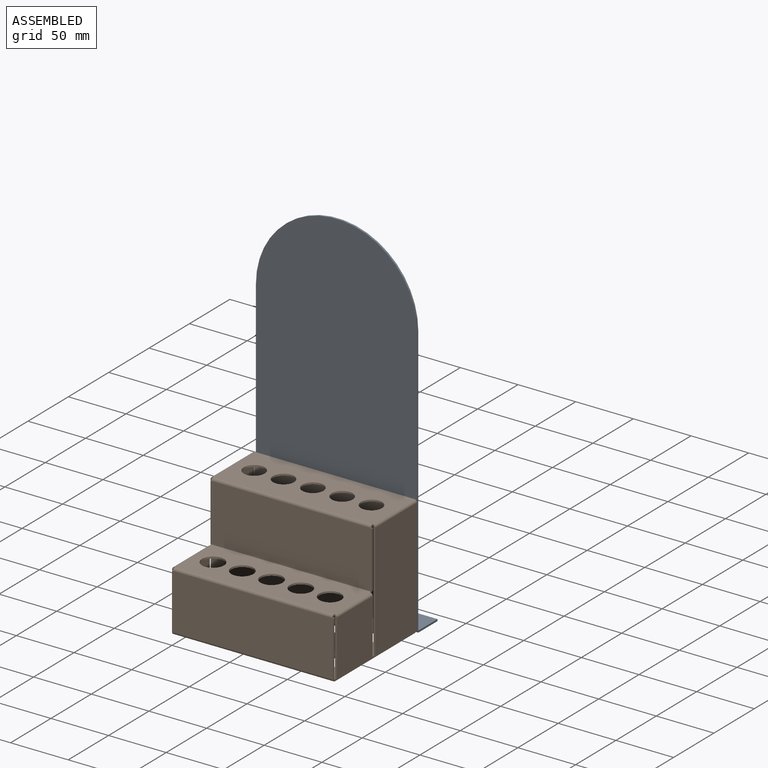
[diagram: assembled view]
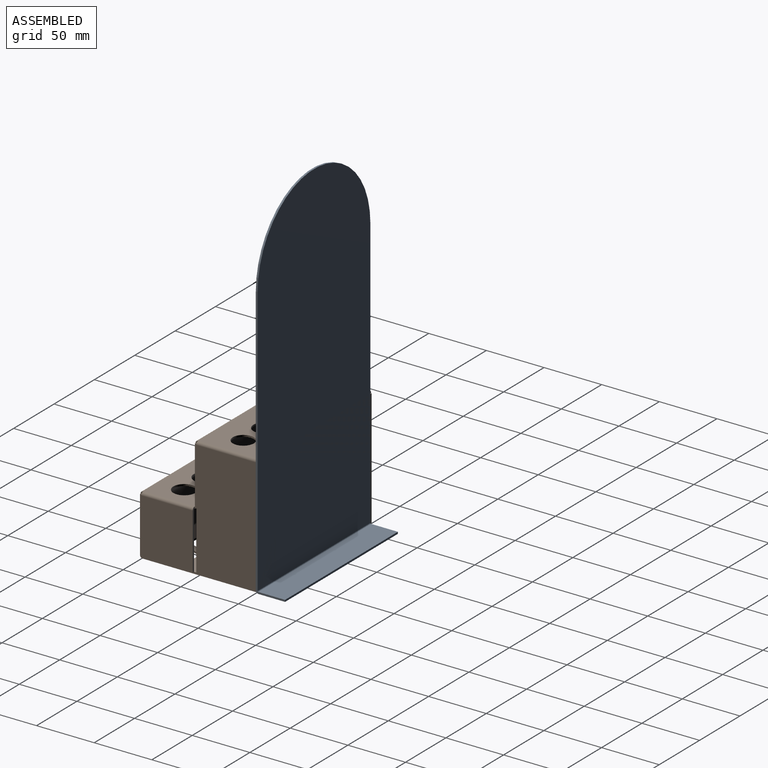
[diagram: assembled view, second angle]
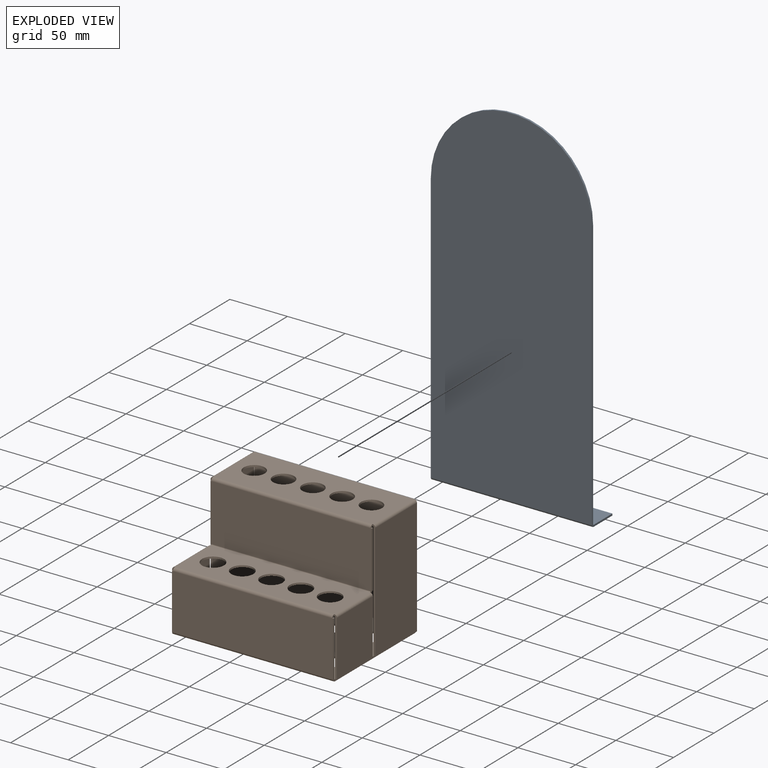
[diagram: exploded view]
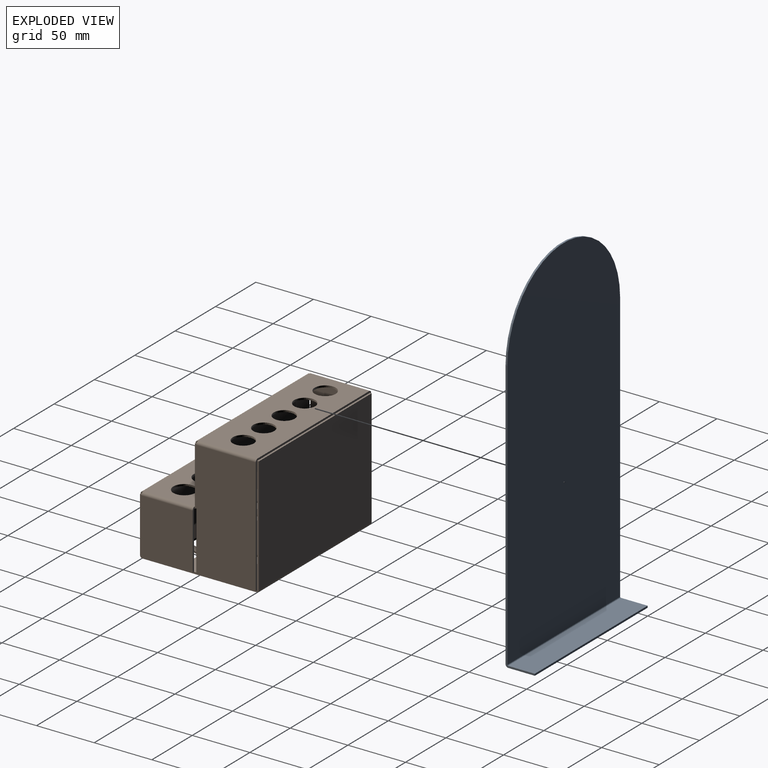
[diagram: exploded view, second angle]
ASSEMBLY  parts=2 mates=3
PART A: 14 faces, bbox 139.7x25.4x306.4 mm
  f0: plane 234.19x1.59mm, normal (1,0,0), area 371.8mm2, adj f2,f3,f4,f10
  f1: plane 234.19x1.59mm, normal (-1,0,0), area 371.8mm2, adj f2,f3,f4,f11
  f2: cylinder r=69.85mm len=139.7mm, axis (0,-1,0), area 348.4mm2, adj f0,f1,f3,f4
  f3: plane 304.04x139.7mm, normal (0,1,0), area 40380mm2, adj f0,f1,f2,f13
  f4: plane 304.04x139.7mm, normal (0,-1,0), area 40380mm2, adj f0,f1,f2,f12
  f5: plane 139.7x1.59mm, normal (0,1,0), area 221.8mm2, adj f6,f7,f8,f9
  f6: plane 23.05x1.59mm, normal (-1,0,0), area 36.6mm2, adj f5,f8,f9,f11
  f7: plane 23.05x1.59mm, normal (1,0,0), area 36.6mm2, adj f5,f8,f9,f10
  f8: plane 139.7x23.05mm, normal (0,0,1), area 3220.2mm2, adj f5,f6,f7,f13
  f9: plane 139.7x23.05mm, normal (0,0,-1), area 3220.2mm2, adj f5,f6,f7,f12
  f10: plane 2.35x2.35mm, normal (1,0,0), area 3.9mm2, adj f0,f7,f12,f13
  f11: plane 2.35x2.35mm, normal (-1,0,0), area 3.9mm2, adj f1,f6,f12,f13
  f12: cylinder r=2.35mm len=139.7mm, axis (1,0,0), area 515.6mm2, adj f4,f9,f10,f11
  f13: cylinder r=0.76mm len=139.7mm, axis (1,0,0), area 167.2mm2, adj f3,f8,f10,f11
PART B: 112 faces, bbox 142.9x103.2x104.8 mm
  f0: plane 100.84x1.59mm, normal (-1,0,0), area 160.1mm2, adj f1,f3,f4,f109
  f1: plane 139.65x1.59mm, normal (0,0,1), area 221.7mm2, adj f0,f2,f3,f4
  f2: plane 100.84x1.59mm, normal (1,0,0), area 160.1mm2, adj f1,f3,f4,f108
  f3: plane 139.65x100.84mm, normal (0,1,0), area 14081.9mm2, adj f0,f1,f2,f110
  f4: plane 139.65x100.84mm, normal (0,-1,0), area 14081.9mm2, adj f0,f1,f2,f111
  f5: plane 1.59x0.03mm, normal (0,1,0), area 0mm2, adj f12,f13,f25,f26
  f6: plane 1.59x0.03mm, normal (0,-1,0), area 0mm2, adj f11,f12,f25,f26
  f7: plane 1.59x0.03mm, normal (0,-1,0), area 0mm2, adj f9,f10,f25,f26
  f8: plane 1.59x0.03mm, normal (0,1,0), area 0mm2, adj f9,f24,f25,f26
  f9: plane 3.11x1.59mm, normal (1,0,0), area 4.9mm2, adj f7,f8,f25,f26
  f10: plane 44.51x1.59mm, normal (1,0,0), area 70.7mm2, adj f7,f25,f26,f104
  f11: plane 44.51x1.59mm, normal (-1,0,0), area 70.7mm2, adj f6,f25,f26,f105
  f12: plane 3.11x1.59mm, normal (-1,0,0), area 4.9mm2, adj f5,f6,f25,f26
  f13: plane 50.86x1.59mm, normal (-1,0,0), area 80.7mm2, adj f5,f25,f26,f109
  f14: cylinder r=9.53mm len=19.05mm, axis (0,0,-1), area 95mm2, adj f25,f26
  f15: cylinder r=9.53mm len=19.05mm, axis (0,0,-1), area 95mm2, adj f25,f26
  f16: cylinder r=9.53mm len=19.05mm, axis (0,0,-1), area 95mm2, adj f25,f26
  f17: cylinder r=9.53mm len=19.05mm, axis (0,0,-1), area 95mm2, adj f25,f26
  f18: cylinder r=9.53mm len=19.05mm, axis (0,0,-1), area 95mm2, adj f25,f26
  f19: cylinder r=9.11mm len=18.22mm, axis (0,0,-1), area 90.8mm2, adj f25,f26
  f20: cylinder r=9.11mm len=18.22mm, axis (0,0,-1), area 90.8mm2, adj f25,f26
  f21: cylinder r=9.11mm len=18.22mm, axis (0,0,-1), area 90.8mm2, adj f25,f26
  f22: cylinder r=9.11mm len=18.22mm, axis (0,0,-1), area 90.8mm2, adj f25,f26
  f23: cylinder r=9.11mm len=18.22mm, axis (0,0,-1), area 90.8mm2, adj f25,f26
  f24: plane 50.86x1.59mm, normal (1,0,0), area 80.7mm2, adj f8,f25,f26,f108
  f25: plane 139.7x98.49mm, normal (0,0,-1), area 11026mm2, adj f5,f6,f7,f8,f9,f10,f11,f12
  f26: plane 139.7x98.49mm, normal (0,0,1), area 11026mm2, adj f5,f6,f7,f8,f9,f10,f11,f12
  f27: plane 1.59x0.76mm, normal (0,0,1), area 1.2mm2, adj f30,f31,f32,f100
  f28: plane 1.59x0.76mm, normal (0,0,1), area 1.2mm2, adj f29,f31,f32,f101
  f29: plane 47.69x1.59mm, normal (-1,0,0), area 75.7mm2, adj f28,f31,f32,f105
  f30: plane 47.69x1.59mm, normal (1,0,0), area 75.7mm2, adj f27,f31,f32,f104
  f31: plane 139.7x47.69mm, normal (0,-1,0), area 6662.1mm2, adj f27,f28,f29,f30,f102,f106
  f32: plane 139.7x47.69mm, normal (0,1,0), area 6662.1mm2, adj f27,f28,f29,f30,f103,f107
  f33: cylinder r=9.53mm len=19.05mm, axis (0,0,1), area 95mm2, adj f38,f39
  f34: cylinder r=9.53mm len=19.05mm, axis (0,0,1), area 95mm2, adj f38,f39
  f35: cylinder r=9.53mm len=19.05mm, axis (0,0,1), area 95mm2, adj f38,f39
  f36: cylinder r=9.53mm len=19.05mm, axis (0,0,1), area 95mm2, adj f38,f39
  f37: cylinder r=9.53mm len=19.05mm, axis (0,0,1), area 95mm2, adj f38,f39
  f38: plane 138.18x44.51mm, normal (0,0,1), area 4725.6mm2, adj f33,f34,f35,f36,f37,f81,f89,f98
  f39: plane 138.18x44.51mm, normal (0,0,-1), area 4725.6mm2, adj f33,f34,f35,f36,f37,f80,f90,f99
  f40: plane 1.59x0.76mm, normal (0,0,-1), area 1.2mm2, adj f45,f46,f47,f79
  f41: plane 1.59x0.76mm, normal (0,0,1), area 1.2mm2, adj f45,f46,f47,f74
  f42: plane 1.59x0.76mm, normal (0,0,1), area 1.2mm2, adj f43,f46,f47,f75
  f43: plane 49.29x1.59mm, normal (-1,0,0), area 78.2mm2, adj f42,f44,f46,f47
  f44: plane 1.59x0.76mm, normal (0,0,-1), area 1.2mm2, adj f43,f46,f47,f78
  f45: plane 49.29x1.59mm, normal (1,0,0), area 78.2mm2, adj f40,f41,f46,f47
  f46: plane 139.7x49.29mm, normal (0,-1,0), area 6885.6mm2, adj f40,f41,f42,f43,f44,f45,f76,f81
  f47: plane 139.7x49.29mm, normal (0,1,0), area 6885.6mm2, adj f40,f41,f42,f43,f44,f45,f77,f80
  f48: plane 138.18x1.59mm, normal (0,1,0), area 219.4mm2, adj f54,f55,f62,f71
  f49: cylinder r=9.11mm len=18.22mm, axis (0,0,1), area 90.8mm2, adj f54,f55
  f50: cylinder r=9.11mm len=18.22mm, axis (0,0,1), area 90.8mm2, adj f54,f55
  f51: cylinder r=9.11mm len=18.22mm, axis (0,0,1), area 90.8mm2, adj f54,f55
  f52: cylinder r=9.11mm len=18.22mm, axis (0,0,1), area 90.8mm2, adj f54,f55
  f53: cylinder r=9.11mm len=18.22mm, axis (0,0,1), area 90.8mm2, adj f54,f55
  f54: plane 138.18x51.63mm, normal (0,0,1), area 5830.5mm2, adj f48,f49,f50,f51,f52,f53,f63,f72
  f55: plane 138.18x51.63mm, normal (0,0,-1), area 5830.5mm2, adj f48,f49,f50,f51,f52,f53,f64,f73
  f56: plane 100.83x1.59mm, normal (0,1,0), area 160.1mm2, adj f57,f59,f60,f62
  f57: plane 51.6x1.59mm, normal (0,0,-1), area 81.9mm2, adj f56,f58,f59,f60
  f58: plane 100.83x1.59mm, normal (0,-1,0), area 160.1mm2, adj f57,f59,f60,f61
  f59: plane 100.83x51.6mm, normal (-1,0,0), area 5202.6mm2, adj f56,f57,f58,f63
  f60: plane 100.83x51.6mm, normal (1,0,0), area 5202.6mm2, adj f56,f57,f58,f64
  f61: plane 2.35x2.35mm, normal (0,-1,0), area 3.9mm2, adj f58,f63,f64,f75
  f62: bspline ~2.35x2.35mm, area 3.9mm2, adj f48,f56,f63,f64
  f63: cylinder r=2.35mm len=51.63mm, axis (0,-1,0), area 190.5mm2, adj f54,f59,f61,f62
  f64: cylinder r=0.76mm len=51.63mm, axis (0,-1,0), area 61.8mm2, adj f55,f60,f61,f62
  f65: plane 51.6x1.59mm, normal (0,0,-1), area 81.9mm2, adj f66,f67,f68,f69
  f66: plane 100.83x1.59mm, normal (0,1,0), area 160.1mm2, adj f65,f68,f69,f71
  f67: plane 100.83x1.59mm, normal (0,-1,0), area 160.1mm2, adj f65,f68,f69,f70
  f68: plane 100.83x51.6mm, normal (1,0,0), area 5202.6mm2, adj f65,f66,f67,f72
  f69: plane 100.83x51.6mm, normal (-1,0,0), area 5202.6mm2, adj f65,f66,f67,f73
  f70: plane 2.35x2.35mm, normal (0,-1,0), area 3.9mm2, adj f67,f72,f73,f74
  f71: bspline ~2.35x2.35mm, area 3.9mm2, adj f48,f66,f72,f73
  f72: cylinder r=2.35mm len=51.63mm, axis (0,-1,0), area 190.5mm2, adj f54,f68,f70,f71
  f73: cylinder r=0.76mm len=51.63mm, axis (0,-1,0), area 61.8mm2, adj f55,f69,f70,f71
  f74: plane 2.35x2.35mm, normal (1,0,0), area 3.9mm2, adj f41,f70,f76,f77
  f75: plane 2.35x2.35mm, normal (-1,0,0), area 3.9mm2, adj f42,f61,f76,f77
  f76: cylinder r=2.35mm len=138.18mm, axis (1,0,0), area 510mm2, adj f46,f54,f74,f75
  f77: cylinder r=0.76mm len=138.18mm, axis (1,0,0), area 165.4mm2, adj f47,f55,f74,f75
  f78: plane 2.35x2.35mm, normal (-1,0,0), area 3.9mm2, adj f44,f80,f81,f88
  f79: plane 2.35x2.35mm, normal (1,0,0), area 3.9mm2, adj f40,f80,f81,f96
  f80: cylinder r=2.35mm len=138.18mm, axis (-1,0,0), area 510mm2, adj f39,f47,f78,f79
  f81: cylinder r=0.76mm len=138.18mm, axis (-1,0,0), area 165.4mm2, adj f38,f46,f78,f79
  f82: plane 44.51x1.59mm, normal (0,0,-1), area 70.7mm2, adj f83,f84,f85,f86
  f83: plane 48.43x1.59mm, normal (0,-1,0), area 76.9mm2, adj f82,f85,f86,f87
  f84: plane 48.43x1.59mm, normal (0,1,0), area 76.9mm2, adj f82,f85,f86,f88
  f85: plane 48.43x44.51mm, normal (-1,0,0), area 2155.6mm2, adj f82,f83,f84,f89
  f86: plane 48.43x44.51mm, normal (1,0,0), area 2155.6mm2, adj f82,f83,f84,f90
  f87: plane 2.35x2.35mm, normal (0,-1,0), area 3.9mm2, adj f83,f89,f90,f101
  f88: plane 2.35x2.35mm, normal (0,1,0), area 3.9mm2, adj f78,f84,f89,f90
  f89: cylinder r=2.35mm len=44.51mm, axis (0,-1,0), area 164.3mm2, adj f38,f85,f87,f88
  f90: cylinder r=0.76mm len=44.51mm, axis (0,-1,0), area 53.3mm2, adj f39,f86,f87,f88
  f91: plane 44.51x1.59mm, normal (0,0,-1), area 70.7mm2, adj f92,f93,f94,f95
  f92: plane 48.43x1.59mm, normal (0,1,0), area 76.9mm2, adj f91,f94,f95,f96
  f93: plane 48.43x1.59mm, normal (0,-1,0), area 76.9mm2, adj f91,f94,f95,f97
  f94: plane 48.43x44.51mm, normal (1,0,0), area 2155.6mm2, adj f91,f92,f93,f98
  f95: plane 48.43x44.51mm, normal (-1,0,0), area 2155.6mm2, adj f91,f92,f93,f99
  f96: plane 2.35x2.35mm, normal (0,1,0), area 3.9mm2, adj f79,f92,f98,f99
  f97: plane 2.35x2.35mm, normal (0,-1,0), area 3.9mm2, adj f93,f98,f99,f100
  f98: cylinder r=2.35mm len=44.51mm, axis (0,1,0), area 164.3mm2, adj f38,f94,f96,f97
  f99: cylinder r=0.76mm len=44.51mm, axis (0,1,0), area 53.3mm2, adj f39,f95,f96,f97
  f100: plane 2.35x2.35mm, normal (1,0,0), area 3.9mm2, adj f27,f97,f102,f103
  f101: plane 2.35x2.35mm, normal (-1,0,0), area 3.9mm2, adj f28,f87,f102,f103
  f102: cylinder r=2.35mm len=138.18mm, axis (1,0,0), area 510mm2, adj f31,f38,f100,f101
  f103: cylinder r=0.76mm len=138.18mm, axis (1,0,0), area 165.4mm2, adj f32,f39,f100,f101
  f104: bspline ~2.35x2.35mm, area 3.9mm2, adj f10,f30,f106,f107
  f105: bspline ~2.35x2.35mm, area 3.9mm2, adj f11,f29,f106,f107
  f106: cylinder r=2.35mm len=139.7mm, axis (1,0,0), area 515.5mm2, adj f25,f31,f104,f105
  f107: cylinder r=0.76mm len=139.7mm, axis (1,0,0), area 167.2mm2, adj f26,f32,f104,f105
  f108: plane 2.35x2.35mm, normal (1,0,0), area 3.9mm2, adj f2,f24,f110,f111
  f109: plane 2.35x2.35mm, normal (-1,0,0), area 3.9mm2, adj f0,f13,f110,f111
  f110: cylinder r=2.35mm len=139.65mm, axis (1,0,0), area 515.4mm2, adj f3,f25,f108,f109
  f111: cylinder r=0.76mm len=139.65mm, axis (1,0,0), area 167.2mm2, adj f4,f26,f108,f109
PLACE A t=(-132.02,8.2,-35.62)mm
PLACE B t=(-133.61,8.2,-35.62)mm
MATE planar B.f3 <-> A.f3  axis (0,1,0) through (-133.61,8.2,15.56)mm
MATE planar B.f22 <-> A.f9  axis (0,0,-1) through (-159.77,-19.29,-37.21)mm
MATE planar B.f68 <-> A.f0  axis (1,0,0) through (-62.17,-19.21,14.82)mm
